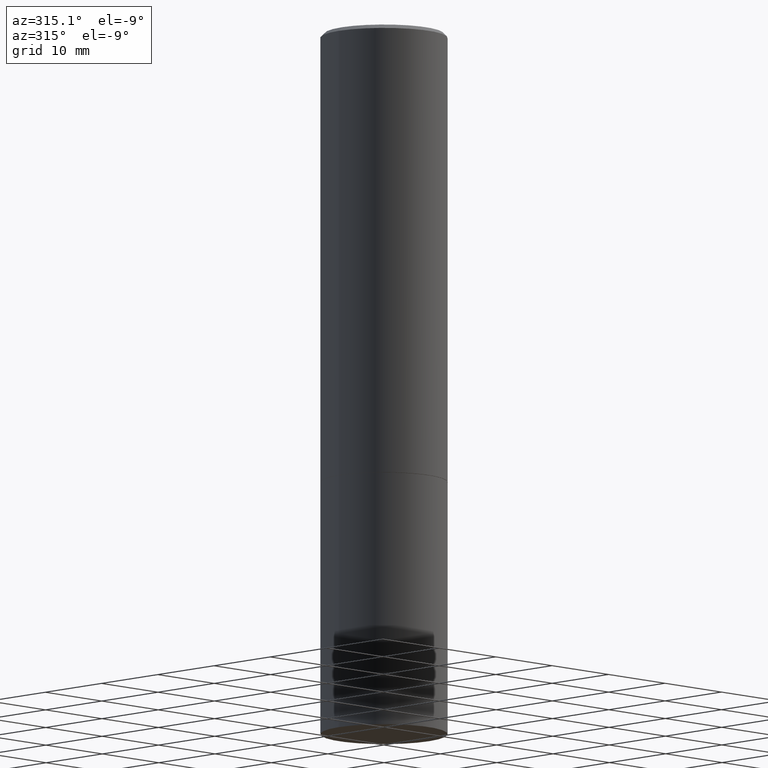
[diagram: clean part render]
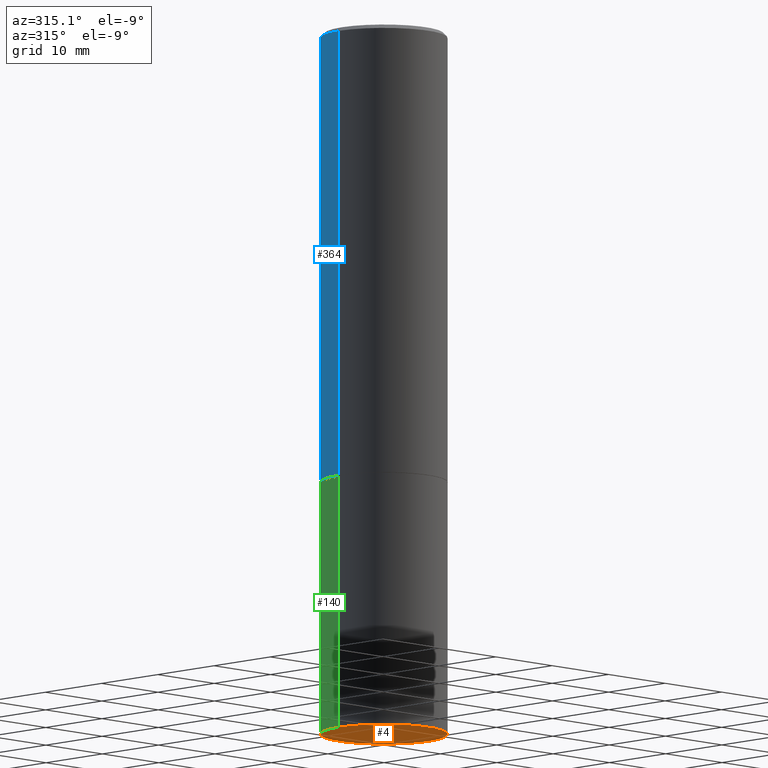
[diagram: same view with three faces highlighted in distinct colors, each labeled with its STEP entity id]
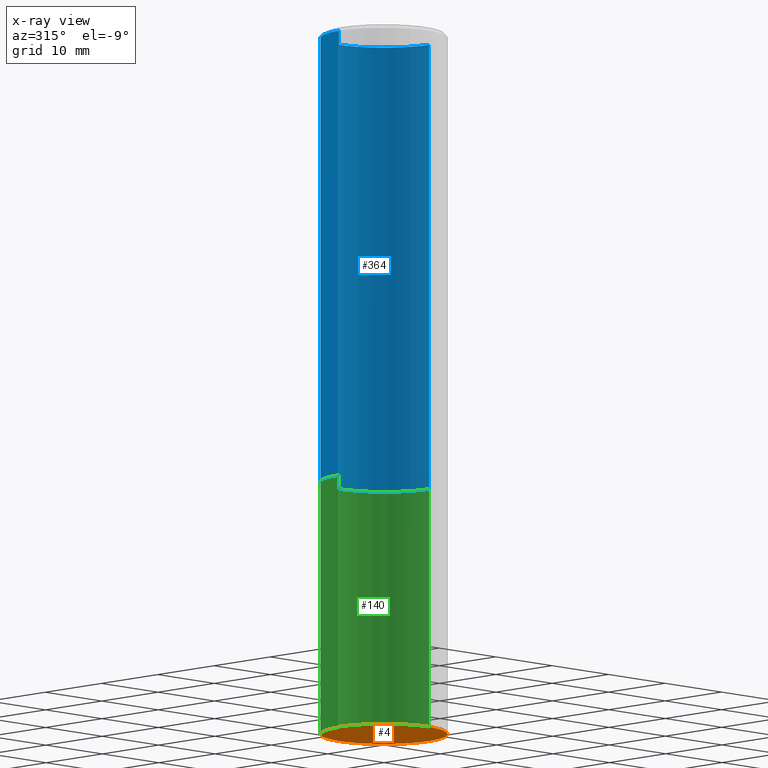
[diagram: x-ray of the same camera — body ghosted, the three highlighted faces saturated]
A machine part, auxiliary view with three faces highlighted in distinct colors.
The next image is the same camera in x-ray (body ghosted, the three faces saturated) — at least one of them is partly hidden behind the body in this view.
Their STEP definitions:

[orange] entity #4 — the highlighted planar face has unit normal (0, -0, -1).
#4 = ADVANCED_FACE ( 'NONE', ( #281 ), #34, .T. ) ;
#34 = PLANE ( 'NONE',  #351 ) ;
#40 = CIRCLE ( 'NONE', #283, 0.3149500000000000077 ) ;
#86 = VERTEX_POINT ( 'NONE', #205 ) ;
#127 = EDGE_CURVE ( 'NONE', #86, #161, #40, .T. ) ;
#132 = CARTESIAN_POINT ( 'NONE',  ( 8.568678149992099474E-29, -1.223380146317249786E-14, -3.503899999999999793 ) ) ;
#138 = CARTESIAN_POINT ( 'NONE',  ( 2.199284095337375068E-15, 0.3149499999999877953, -3.503900000000000681 ) ) ;
#161 = VERTEX_POINT ( 'NONE', #346 ) ;
#179 = AXIS2_PLACEMENT_3D ( 'NONE', #132, #359, #218 ) ;
#193 = EDGE_LOOP ( 'NONE', ( #275, #250 ) ) ;
#197 = CIRCLE ( 'NONE', #179, 0.3149500000000000077 ) ;
#205 = CARTESIAN_POINT ( 'NONE',  ( -0.3149500000000000077, -7.796663021558764114E-15, -3.503899999999999793 ) ) ;
#218 = DIRECTION ( 'NONE',  ( 1.000000000000000000, -6.982962677686263555E-15, 0.000000000000000000 ) ) ;
#235 = DIRECTION ( 'NONE',  ( 1.000000000000000000, -6.982962677686263555E-15, 0.000000000000000000 ) ) ;
#247 = DIRECTION ( 'NONE',  ( 2.438088387897960049E-29, -3.491481338843145188E-15, -1.000000000000000000 ) ) ;
#250 = ORIENTED_EDGE ( 'NONE', *, *, #127, .F. ) ;
#252 = DIRECTION ( 'NONE',  ( -1.000000000000000000, 6.982962677686265922E-15, -4.876176775795935793E-29 ) ) ;
#275 = ORIENTED_EDGE ( 'NONE', *, *, #348, .F. ) ;
#281 = FACE_OUTER_BOUND ( 'NONE', #193, .T. ) ;
#283 = AXIS2_PLACEMENT_3D ( 'NONE', #342, #324, #235 ) ;
#324 = DIRECTION ( 'NONE',  ( -2.445468806185136597E-29, 3.491481338843145583E-15, 1.000000000000000000 ) ) ;
#342 = CARTESIAN_POINT ( 'NONE',  ( 8.568678149992099474E-29, -1.223380146317249786E-14, -3.503899999999999793 ) ) ;
#346 = CARTESIAN_POINT ( 'NONE',  ( 0.3149500000000000077, -1.443308555850978615E-14, -3.503899999999999793 ) ) ;
#348 = EDGE_CURVE ( 'NONE', #161, #86, #197, .T. ) ;
#351 = AXIS2_PLACEMENT_3D ( 'NONE', #138, #247, #252 ) ;
#359 = DIRECTION ( 'NONE',  ( -2.445468806185136597E-29, 3.491481338843145583E-15, 1.000000000000000000 ) ) ;

[blue] entity #364 — the highlighted cylindrical surface (partial cylindrical patch) has radius 7.9997 mm, axis along (-0, 0, 1).
#16 = DIRECTION ( 'NONE',  ( 1.000000000000000000, -6.982962677686266711E-15, 0.000000000000000000 ) ) ;
#17 = CARTESIAN_POINT ( 'NONE',  ( 0.000000000000000000, 0.000000000000000000, 0.000000000000000000 ) ) ;
#18 = EDGE_CURVE ( 'NONE', #300, #224, #319, .T. ) ;
#44 = CYLINDRICAL_SURFACE ( 'NONE', #253, 0.3149499999999998967 ) ;
#46 = ORIENTED_EDGE ( 'NONE', *, *, #18, .F. ) ;
#48 = CARTESIAN_POINT ( 'NONE',  ( 4.890937612370290675E-31, -6.982962677686316261E-17, -0.02000000000000007327 ) ) ;
#52 = DIRECTION ( 'NONE',  ( -2.445468806185136597E-29, 3.491481338843145583E-15, 1.000000000000000000 ) ) ;
#69 = DIRECTION ( 'NONE',  ( -2.445468806185136877E-29, 3.491481338843145188E-15, 1.000000000000000000 ) ) ;
#76 = CARTESIAN_POINT ( 'NONE',  ( 0.3149500000000000077, -1.003102588649634920E-14, -2.243099999999999650 ) ) ;
#82 = DIRECTION ( 'NONE',  ( -2.445468806185136877E-29, 3.491481338843145188E-15, 1.000000000000000000 ) ) ;
#85 = ORIENTED_EDGE ( 'NONE', *, *, #169, .T. ) ;
#97 = CARTESIAN_POINT ( 'NONE',  ( -0.3149499999999998967, 2.237854346276434801E-15, -1.549218606675782116E-29 ) ) ;
#101 = CIRCLE ( 'NONE', #309, 0.3149499999999997302 ) ;
#103 = DIRECTION ( 'NONE',  ( 1.000000000000000000, -6.982962677686266711E-15, 0.000000000000000000 ) ) ;
#137 = ORIENTED_EDGE ( 'NONE', *, *, #323, .T. ) ;
#154 = DIRECTION ( 'NONE',  ( -2.445468806185136597E-29, 3.491481338843145583E-15, 1.000000000000000000 ) ) ;
#165 = EDGE_LOOP ( 'NONE', ( #85, #137, #212, #46 ) ) ;
#169 = EDGE_CURVE ( 'NONE', #300, #222, #171, .T. ) ;
#171 = CIRCLE ( 'NONE', #220, 0.3149500000000000077 ) ;
#172 = CARTESIAN_POINT ( 'NONE',  ( 5.485431079153879149E-29, -7.831741791159059333E-15, -2.243099999999999650 ) ) ;
#180 = CARTESIAN_POINT ( 'NONE',  ( -0.3149500000000000077, -1.712931362691523950E-15, -2.243099999999999650 ) ) ;
#191 = FACE_OUTER_BOUND ( 'NONE', #165, .T. ) ;
#204 = DIRECTION ( 'NONE',  ( -2.445468806185136597E-29, 3.491481338843145583E-15, 1.000000000000000000 ) ) ;
#212 = ORIENTED_EDGE ( 'NONE', *, *, #265, .F. ) ;
#216 = CARTESIAN_POINT ( 'NONE',  ( -0.3149499999999997302, 2.129454468560424601E-15, -0.02000000000000007327 ) ) ;
#220 = AXIS2_PLACEMENT_3D ( 'NONE', #172, #204, #16 ) ;
#222 = VERTEX_POINT ( 'NONE', #180 ) ;
#224 = VERTEX_POINT ( 'NONE', #293 ) ;
#228 = CARTESIAN_POINT ( 'NONE',  ( 0.3149499999999998967, -2.199284095337288688E-15, 1.535751875536929289E-29 ) ) ;
#239 = DIRECTION ( 'NONE',  ( 1.000000000000000000, -6.982962677686265922E-15, 4.876176775795935232E-29 ) ) ;
#253 = AXIS2_PLACEMENT_3D ( 'NONE', #17, #154, #239 ) ;
#260 = VECTOR ( 'NONE', #69, 39.37007874015748143 ) ;
#265 = EDGE_CURVE ( 'NONE', #224, #336, #101, .T. ) ;
#293 = CARTESIAN_POINT ( 'NONE',  ( 0.3149499999999997302, -2.230543471175005478E-15, -0.02000000000000007327 ) ) ;
#300 = VERTEX_POINT ( 'NONE', #76 ) ;
#309 = AXIS2_PLACEMENT_3D ( 'NONE', #48, #52, #103 ) ;
#319 = LINE ( 'NONE', #228, #260 ) ;
#323 = EDGE_CURVE ( 'NONE', #222, #336, #353, .T. ) ;
#336 = VERTEX_POINT ( 'NONE', #216 ) ;
#340 = VECTOR ( 'NONE', #82, 39.37007874015748143 ) ;
#353 = LINE ( 'NONE', #97, #340 ) ;
#364 = ADVANCED_FACE ( 'NONE', ( #191 ), #44, .T. ) ;

[green] entity #140 — the highlighted cylindrical surface (partial cylindrical patch) has radius 7.9997 mm, axis along (-0, 0, 1).
#10 = CIRCLE ( 'NONE', #290, 0.3149500000000000077 ) ;
#36 = CYLINDRICAL_SURFACE ( 'NONE', #65, 0.3149500000000000077 ) ;
#50 = EDGE_CURVE ( 'NONE', #297, #362, #10, .T. ) ;
#65 = AXIS2_PLACEMENT_3D ( 'NONE', #254, #288, #258 ) ;
#67 = EDGE_CURVE ( 'NONE', #86, #362, #120, .T. ) ;
#86 = VERTEX_POINT ( 'NONE', #205 ) ;
#87 = ORIENTED_EDGE ( 'NONE', *, *, #50, .F. ) ;
#93 = CARTESIAN_POINT ( 'NONE',  ( -0.3149500000000000077, 2.237854346276435590E-15, -1.549218606675782676E-29 ) ) ;
#95 = FACE_OUTER_BOUND ( 'NONE', #366, .T. ) ;
#100 = VECTOR ( 'NONE', #117, 39.37007874015748143 ) ;
#117 = DIRECTION ( 'NONE',  ( -2.445468806185136877E-29, 3.491481338843145188E-15, 1.000000000000000000 ) ) ;
#120 = LINE ( 'NONE', #93, #100 ) ;
#126 = DIRECTION ( 'NONE',  ( -2.445468806185136877E-29, 3.491481338843145188E-15, 1.000000000000000000 ) ) ;
#132 = CARTESIAN_POINT ( 'NONE',  ( 8.568678149992099474E-29, -1.223380146317249786E-14, -3.503899999999999793 ) ) ;
#140 = ADVANCED_FACE ( 'NONE', ( #95 ), #36, .T. ) ;
#157 = CARTESIAN_POINT ( 'NONE',  ( 0.3149500000000000077, -1.003451736783519063E-14, -2.244099999999999540 ) ) ;
#159 = VECTOR ( 'NONE', #126, 39.37007874015748143 ) ;
#161 = VERTEX_POINT ( 'NONE', #346 ) ;
#168 = ORIENTED_EDGE ( 'NONE', *, *, #348, .T. ) ;
#179 = AXIS2_PLACEMENT_3D ( 'NONE', #132, #359, #218 ) ;
#184 = CARTESIAN_POINT ( 'NONE',  ( 0.3149500000000000077, -2.199284095337289871E-15, 1.535751875536930130E-29 ) ) ;
#197 = CIRCLE ( 'NONE', #179, 0.3149500000000000077 ) ;
#205 = CARTESIAN_POINT ( 'NONE',  ( -0.3149500000000000077, -7.796663021558764114E-15, -3.503899999999999793 ) ) ;
#208 = DIRECTION ( 'NONE',  ( -2.445468806185136597E-29, 3.491481338843145583E-15, 1.000000000000000000 ) ) ;
#211 = LINE ( 'NONE', #184, #159 ) ;
#218 = DIRECTION ( 'NONE',  ( 1.000000000000000000, -6.982962677686263555E-15, 0.000000000000000000 ) ) ;
#230 = EDGE_CURVE ( 'NONE', #161, #297, #211, .T. ) ;
#254 = CARTESIAN_POINT ( 'NONE',  ( 0.000000000000000000, 0.000000000000000000, 0.000000000000000000 ) ) ;
#258 = DIRECTION ( 'NONE',  ( 1.000000000000000000, -6.982962677686266711E-15, 4.876176775795936353E-29 ) ) ;
#288 = DIRECTION ( 'NONE',  ( -2.445468806185136597E-29, 3.491481338843145583E-15, 1.000000000000000000 ) ) ;
#290 = AXIS2_PLACEMENT_3D ( 'NONE', #344, #208, #314 ) ;
#297 = VERTEX_POINT ( 'NONE', #157 ) ;
#312 = ORIENTED_EDGE ( 'NONE', *, *, #67, .T. ) ;
#314 = DIRECTION ( 'NONE',  ( 1.000000000000000000, -6.982962677686266711E-15, 0.000000000000000000 ) ) ;
#331 = CARTESIAN_POINT ( 'NONE',  ( -0.3149500000000000077, -7.796663021558764114E-15, -2.244099999999999540 ) ) ;
#339 = ORIENTED_EDGE ( 'NONE', *, *, #230, .F. ) ;
#344 = CARTESIAN_POINT ( 'NONE',  ( 5.487876547960064752E-29, -7.835233272497900762E-15, -2.244099999999999540 ) ) ;
#346 = CARTESIAN_POINT ( 'NONE',  ( 0.3149500000000000077, -1.443308555850978615E-14, -3.503899999999999793 ) ) ;
#348 = EDGE_CURVE ( 'NONE', #161, #86, #197, .T. ) ;
#359 = DIRECTION ( 'NONE',  ( -2.445468806185136597E-29, 3.491481338843145583E-15, 1.000000000000000000 ) ) ;
#362 = VERTEX_POINT ( 'NONE', #331 ) ;
#366 = EDGE_LOOP ( 'NONE', ( #168, #312, #87, #339 ) ) ;